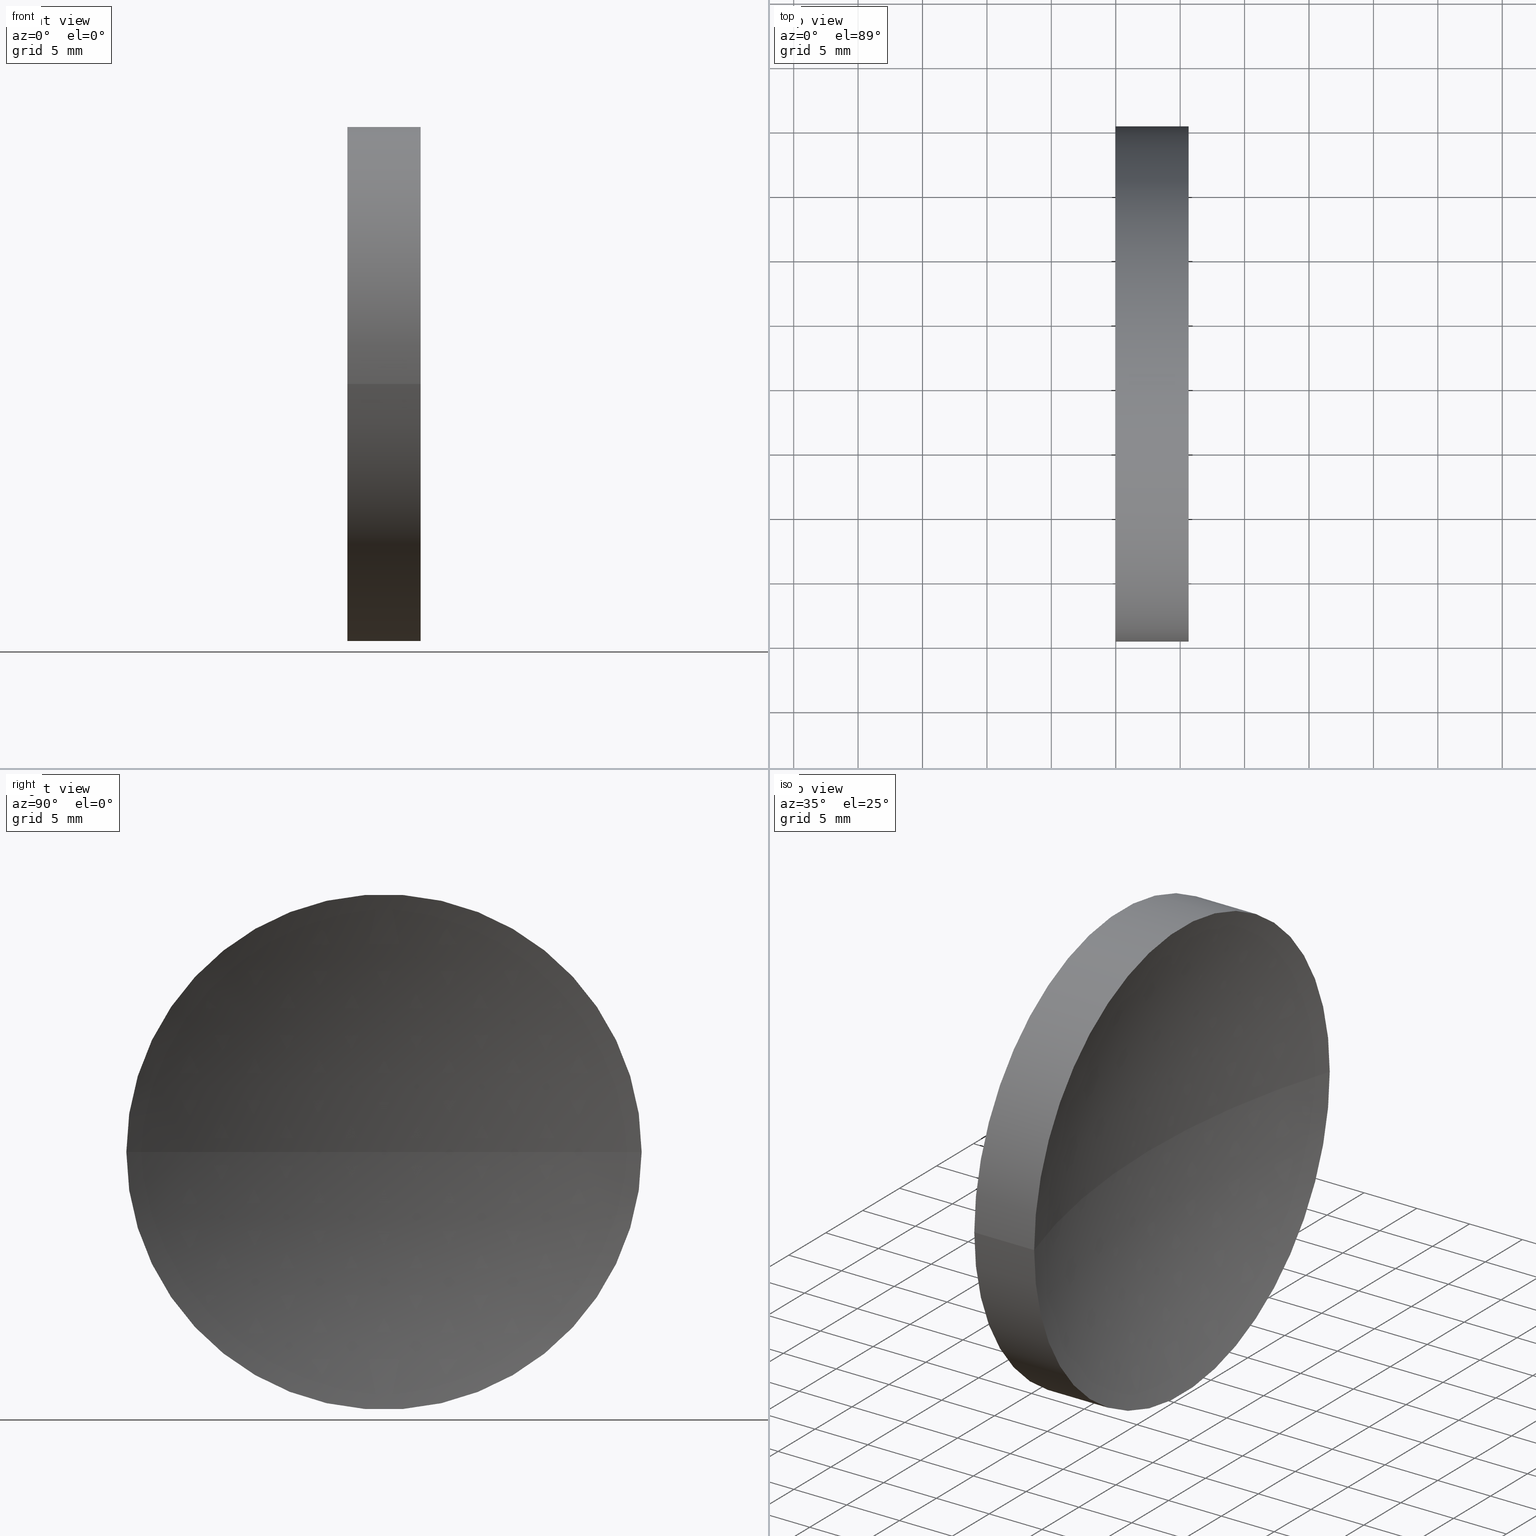
[diagram: canonical four-view strip — front | top / right | iso, engineering-drawing reading convention]
A machine part, canonical four-view strip (front | top / right | iso — engineering-drawing reading convention). The complete STEP part file that produces these views, byte-faithful:
ISO-10303-21;
HEADER;
FILE_DESCRIPTION (( 'STEP AP214' ),
    '1' );
FILE_NAME ('12016.STEP',
    '2019-06-21T02:53:35',
    ( '' ),
    ( '' ),
    'SwSTEP 2.0',
    'SolidWorks 2016',
    '' );
FILE_SCHEMA (( 'AUTOMOTIVE_DESIGN' ));
ENDSEC;

DATA;
#1 = ADVANCED_FACE ( 'NONE', ( #76 ), #99, .F. ) ;
#2 =( NAMED_UNIT ( * ) PLANE_ANGLE_UNIT ( ) SI_UNIT ( $, .RADIAN. ) );
#3 = CARTESIAN_POINT ( 'NONE',  ( 0.0000000000000000000, 0.0000000000000000000, 0.0000000000000000000 ) ) ;
#4 = ADVANCED_FACE ( 'NONE', ( #106 ), #24, .F. ) ;
#5 = ORIENTED_EDGE ( 'NONE', *, *, #23, .F. ) ;
#6 = CARTESIAN_POINT ( 'NONE',  ( 110.0147892488423600, 65.15745182658619700, 0.0000000000000000000 ) ) ;
#7 = SURFACE_STYLE_USAGE ( .BOTH. , #32 ) ;
#8 = CARTESIAN_POINT ( 'NONE',  ( 117.4754472601861900, 65.15745356914868600, 0.0000000000000000000 ) ) ;
#9 = STYLED_ITEM ( 'NONE', ( #15 ), #159 ) ;
#10 = EDGE_CURVE ( 'NONE', #27, #121, #66, .T. ) ;
#11 = UNCERTAINTY_MEASURE_WITH_UNIT (LENGTH_MEASURE( 1.000000000000000100E-005 ), #87, 'distance_accuracy_value', 'NONE');
#12 = EDGE_LOOP ( 'NONE', ( #131, #22, #50, #5 ) ) ;
#13 = ORIENTED_EDGE ( 'NONE', *, *, #95, .F. ) ;
#14 = EDGE_CURVE ( 'NONE', #27, #81, #148, .T. ) ;
#15 = PRESENTATION_STYLE_ASSIGNMENT (( #7 ) ) ;
#16 = CARTESIAN_POINT ( 'NONE',  ( 120.6519792980244600, 85.15745182658623900, 2.449293384892353000E-015 ) ) ;
#17 = DIRECTION ( 'NONE',  ( 6.488933942079480100E-016, 1.000000000000000000, 0.0000000000000000000 ) ) ;
#18 = EDGE_LOOP ( 'NONE', ( #109, #100, #155 ) ) ;
#19 = CARTESIAN_POINT ( 'NONE',  ( 120.6519792980244300, 45.15745356914864300, 0.0000000000000000000 ) ) ;
#20 = DIRECTION ( 'NONE',  ( -1.000000000000000000, 6.488933942079480100E-016, -0.0000000000000000000 ) ) ;
#21 =( LENGTH_UNIT ( ) NAMED_UNIT ( * ) SI_UNIT ( .MILLI., .METRE. ) );
#22 = ORIENTED_EDGE ( 'NONE', *, *, #14, .T. ) ;
#23 = EDGE_CURVE ( 'NONE', #94, #144, #39, .T. ) ;
#24 = SPHERICAL_SURFACE ( 'NONE', #31, 64.54999999999999700 ) ;
#25 = AXIS2_PLACEMENT_3D ( 'NONE', #112, #30, #125 ) ;
#26 = FACE_OUTER_BOUND ( 'NONE', #18, .T. ) ;
#27 = VERTEX_POINT ( 'NONE', #16 ) ;
#28 = SURFACE_STYLE_FILL_AREA ( #77 ) ;
#29 = CYLINDRICAL_SURFACE ( 'NONE', #117, 20.00000000000001100 ) ;
#30 = DIRECTION ( 'NONE',  ( -7.946652182046252500E-032, -1.224646799147353200E-016, 1.000000000000000000 ) ) ;
#31 = AXIS2_PLACEMENT_3D ( 'NONE', #141, #98, #73 ) ;
#32 = SURFACE_SIDE_STYLE ('',( #88 ) ) ;
#33 = DIRECTION ( 'NONE',  ( 1.000000000000000000, 0.0000000000000000000, 0.0000000000000000000 ) ) ;
#34 = AXIS2_PLACEMENT_3D ( 'NONE', #142, #161, #61 ) ;
#35 = DIRECTION ( 'NONE',  ( -6.938893903907219500E-016, -1.000000000000000000, 0.0000000000000000000 ) ) ;
#36 = FILL_AREA_STYLE_COLOUR ( '', #104 ) ;
#37 = DIRECTION ( 'NONE',  ( -1.000000000000000000, 6.488933942079480100E-016, -0.0000000000000000000 ) ) ;
#38 = PRODUCT_DEFINITION_SHAPE ( 'NONE', 'NONE',  #72 ) ;
#39 = LINE ( 'NONE', #86, #140 ) ;
#40 = PRESENTATION_STYLE_ASSIGNMENT (( #75 ) ) ;
#41 = EDGE_LOOP ( 'NONE', ( #57, #120, #96 ) ) ;
#42 = AXIS2_PLACEMENT_3D ( 'NONE', #79, #107, #130 ) ;
#43 = DIRECTION ( 'NONE',  ( -1.000000000000000000, 6.488933942079480100E-016, -0.0000000000000000000 ) ) ;
#44 = EDGE_CURVE ( 'NONE', #27, #94, #158, .T. ) ;
#45 = FACE_OUTER_BOUND ( 'NONE', #12, .T. ) ;
#46 =( LENGTH_UNIT ( ) NAMED_UNIT ( * ) SI_UNIT ( .MILLI., .METRE. ) );
#47 = CARTESIAN_POINT ( 'NONE',  ( 114.9754472601862300, 85.15745182658619700, 2.449293598294706500E-015 ) ) ;
#48 = PRODUCT_CONTEXT ( 'NONE', #74, 'mechanical' ) ;
#49 =( GEOMETRIC_REPRESENTATION_CONTEXT ( 3 ) GLOBAL_UNCERTAINTY_ASSIGNED_CONTEXT ( ( #70 ) ) GLOBAL_UNIT_ASSIGNED_CONTEXT ( ( #21, #118, #147 ) ) REPRESENTATION_CONTEXT ( 'NONE', 'WORKASPACE' ) );
#50 = ORIENTED_EDGE ( 'NONE', *, *, #68, .F. ) ;
#51 = CARTESIAN_POINT ( 'NONE',  ( 114.9754472601862000, 45.15745182658619000, 0.0000000000000000000 ) ) ;
#52 = APPLICATION_PROTOCOL_DEFINITION ( 'draft international standard', 'automotive_design', 1998, #53 ) ;
#53 = APPLICATION_CONTEXT ( 'automotive_design' ) ;
#54 = AXIS2_PLACEMENT_3D ( 'NONE', #6, #116, #103 ) ;
#55 = ORIENTED_EDGE ( 'NONE', *, *, #23, .T. ) ;
#56 = CIRCLE ( 'NONE', #166, 20.00000000000002500 ) ;
#57 = ORIENTED_EDGE ( 'NONE', *, *, #44, .F. ) ;
#58 = CARTESIAN_POINT ( 'NONE',  ( 114.9754472601862300, 65.15745182658619700, 0.0000000000000000000 ) ) ;
#59 = EDGE_LOOP ( 'NONE', ( #84, #111, #55, #13 ) ) ;
#60 = DIRECTION ( 'NONE',  ( -6.938893903907224400E-016, -1.000000000000000000, 0.0000000000000000000 ) ) ;
#61 = DIRECTION ( 'NONE',  ( -6.938893903907219500E-016, -1.000000000000000000, 0.0000000000000000000 ) ) ;
#62 = PRESENTATION_LAYER_ASSIGNMENT (  '', '', ( #9 ) ) ;
#63 = CARTESIAN_POINT ( 'NONE',  ( 110.0147892488423600, 65.15745182658619700, 0.0000000000000000000 ) ) ;
#64 = PRODUCT ( '12016', '12016', '', ( #48 ) ) ;
#65 = AXIS2_PLACEMENT_3D ( 'NONE', #134, #105, #143 ) ;
#66 = CIRCLE ( 'NONE', #25, 64.54999999999999700 ) ;
#67 = CIRCLE ( 'NONE', #65, 64.54999999999999700 ) ;
#68 = EDGE_CURVE ( 'NONE', #144, #81, #92, .T. ) ;
#69 = VECTOR ( 'NONE', #97, 1000.000000000000000 ) ;
#70 = UNCERTAINTY_MEASURE_WITH_UNIT (LENGTH_MEASURE( 1.000000000000000100E-005 ), #21, 'distance_accuracy_value', 'NONE');
#71 = MECHANICAL_DESIGN_GEOMETRIC_PRESENTATION_REPRESENTATION (  '', ( #101 ), #102 ) ;
#72 = PRODUCT_DEFINITION ( 'δ֪', '', #137, #136 ) ;
#73 = DIRECTION ( 'NONE',  ( -8.599713591209579000E-016, -1.000000000000000000, 0.0000000000000000000 ) ) ;
#74 = APPLICATION_CONTEXT ( 'automotive_design' ) ;
#75 = SURFACE_STYLE_USAGE ( .BOTH. , #163 ) ;
#76 = FACE_OUTER_BOUND ( 'NONE', #157, .T. ) ;
#77 = FILL_AREA_STYLE ('',( #36 ) ) ;
#78 = ADVANCED_FACE ( 'NONE', ( #45 ), #162, .T. ) ;
#79 = CARTESIAN_POINT ( 'NONE',  ( 182.0254472601861800, 65.15745356914864300, 0.0000000000000000000 ) ) ;
#80 = DIRECTION ( 'NONE',  ( -6.938893903907227400E-016, -1.000000000000000000, 0.0000000000000000000 ) ) ;
#81 = VERTEX_POINT ( 'NONE', #47 ) ;
#82 = PRODUCT_RELATED_PRODUCT_CATEGORY ( 'part', '', ( #64 ) ) ;
#83 = PRESENTATION_LAYER_ASSIGNMENT (  '', '', ( #101 ) ) ;
#84 = ORIENTED_EDGE ( 'NONE', *, *, #14, .F. ) ;
#85 = ORIENTED_EDGE ( 'NONE', *, *, #68, .T. ) ;
#86 = CARTESIAN_POINT ( 'NONE',  ( 110.0147892488423500, 45.15745182658618300, 0.0000000000000000000 ) ) ;
#87 =( LENGTH_UNIT ( ) NAMED_UNIT ( * ) SI_UNIT ( .MILLI., .METRE. ) );
#88 = SURFACE_STYLE_FILL_AREA ( #91 ) ;
#89 =( NAMED_UNIT ( * ) SI_UNIT ( $, .STERADIAN. ) SOLID_ANGLE_UNIT ( ) );
#90 = ADVANCED_FACE ( 'NONE', ( #93 ), #29, .T. ) ;
#91 = FILL_AREA_STYLE ('',( #165 ) ) ;
#92 = CIRCLE ( 'NONE', #113, 20.00000000000000400 ) ;
#93 = FACE_OUTER_BOUND ( 'NONE', #59, .T. ) ;
#94 = VERTEX_POINT ( 'NONE', #19 ) ;
#95 = EDGE_CURVE ( 'NONE', #81, #144, #156, .T. ) ;
#96 = ORIENTED_EDGE ( 'NONE', *, *, #122, .F. ) ;
#97 = DIRECTION ( 'NONE',  ( -1.000000000000000000, 6.488933942079480100E-016, -0.0000000000000000000 ) ) ;
#98 = DIRECTION ( 'NONE',  ( 0.0000000000000000000, 0.0000000000000000000, 1.000000000000000000 ) ) ;
#99 = PLANE ( 'NONE',  #108 ) ;
#100 = ORIENTED_EDGE ( 'NONE', *, *, #128, .F. ) ;
#101 = STYLED_ITEM ( 'NONE', ( #40 ), #151 ) ;
#102 =( GEOMETRIC_REPRESENTATION_CONTEXT ( 3 ) GLOBAL_UNCERTAINTY_ASSIGNED_CONTEXT ( ( #11 ) ) GLOBAL_UNIT_ASSIGNED_CONTEXT ( ( #87, #2, #89 ) ) REPRESENTATION_CONTEXT ( 'NONE', 'WORKASPACE' ) );
#103 = DIRECTION ( 'NONE',  ( -6.938893903907224400E-016, -1.000000000000000000, 0.0000000000000000000 ) ) ;
#104 = COLOUR_RGB ( '',1.000000000000000000, 1.000000000000000000, 1.000000000000000000 ) ;
#105 = DIRECTION ( 'NONE',  ( 0.0000000000000000000, -0.0000000000000000000, -1.000000000000000000 ) ) ;
#106 = FACE_OUTER_BOUND ( 'NONE', #41, .T. ) ;
#107 = DIRECTION ( 'NONE',  ( 0.0000000000000000000, 0.0000000000000000000, 1.000000000000000000 ) ) ;
#108 = AXIS2_PLACEMENT_3D ( 'NONE', #58, #152, #17 ) ;
#109 = ORIENTED_EDGE ( 'NONE', *, *, #10, .F. ) ;
#110 =( GEOMETRIC_REPRESENTATION_CONTEXT ( 3 ) GLOBAL_UNCERTAINTY_ASSIGNED_CONTEXT ( ( #138 ) ) GLOBAL_UNIT_ASSIGNED_CONTEXT ( ( #46, #132, #127 ) ) REPRESENTATION_CONTEXT ( 'NONE', 'WORKASPACE' ) );
#111 = ORIENTED_EDGE ( 'NONE', *, *, #44, .T. ) ;
#112 = CARTESIAN_POINT ( 'NONE',  ( 182.0254472601861800, 65.15745356914864300, 0.0000000000000000000 ) ) ;
#113 = AXIS2_PLACEMENT_3D ( 'NONE', #146, #20, #153 ) ;
#114 = DIRECTION ( 'NONE',  ( -1.000000000000000000, 6.488933942079480100E-016, -0.0000000000000000000 ) ) ;
#115 = DIRECTION ( 'NONE',  ( 0.0000000000000000000, 0.0000000000000000000, 1.000000000000000000 ) ) ;
#116 = DIRECTION ( 'NONE',  ( -1.000000000000000000, 6.488933942079480100E-016, -0.0000000000000000000 ) ) ;
#117 = AXIS2_PLACEMENT_3D ( 'NONE', #63, #154, #60 ) ;
#118 =( NAMED_UNIT ( * ) PLANE_ANGLE_UNIT ( ) SI_UNIT ( $, .RADIAN. ) );
#119 = CARTESIAN_POINT ( 'NONE',  ( 120.6519792980244300, 65.15745182658619700, 0.0000000000000000000 ) ) ;
#120 = ORIENTED_EDGE ( 'NONE', *, *, #10, .T. ) ;
#121 = VERTEX_POINT ( 'NONE', #8 ) ;
#122 = EDGE_CURVE ( 'NONE', #94, #121, #67, .T. ) ;
#123 = SPHERICAL_SURFACE ( 'NONE', #42, 64.54999999999999700 ) ;
#124 = MECHANICAL_DESIGN_GEOMETRIC_PRESENTATION_REPRESENTATION (  '', ( #9 ), #110 ) ;
#125 = DIRECTION ( 'NONE',  ( 0.0000000000000000000, -1.000000000000000000, -1.224646799147353000E-016 ) ) ;
#126 = CARTESIAN_POINT ( 'NONE',  ( 110.0147892488423800, 85.15745182658621100, 2.449293598294708100E-015 ) ) ;
#127 =( NAMED_UNIT ( * ) SI_UNIT ( $, .STERADIAN. ) SOLID_ANGLE_UNIT ( ) );
#128 = EDGE_CURVE ( 'NONE', #94, #27, #56, .T. ) ;
#129 = APPLICATION_PROTOCOL_DEFINITION ( 'draft international standard', 'automotive_design', 1998, #74 ) ;
#130 = DIRECTION ( 'NONE',  ( -8.599713591209579000E-016, -1.000000000000000000, 0.0000000000000000000 ) ) ;
#131 = ORIENTED_EDGE ( 'NONE', *, *, #128, .T. ) ;
#132 =( NAMED_UNIT ( * ) PLANE_ANGLE_UNIT ( ) SI_UNIT ( $, .RADIAN. ) );
#133 = ADVANCED_FACE ( 'NONE', ( #26 ), #123, .F. ) ;
#134 = CARTESIAN_POINT ( 'NONE',  ( 182.0254472601861800, 65.15745356914864300, 0.0000000000000000000 ) ) ;
#135 = CLOSED_SHELL ( 'NONE', ( #78, #4, #133, #90, #1 ) ) ;
#136 = PRODUCT_DEFINITION_CONTEXT ( 'detailed design', #53, 'design' ) ;
#137 = PRODUCT_DEFINITION_FORMATION_WITH_SPECIFIED_SOURCE ( '�κ�', '', #64, .NOT_KNOWN. ) ;
#138 = UNCERTAINTY_MEASURE_WITH_UNIT (LENGTH_MEASURE( 1.000000000000000100E-005 ), #46, 'distance_accuracy_value', 'NONE');
#139 = AXIS2_PLACEMENT_3D ( 'NONE', #3, #115, #33 ) ;
#140 = VECTOR ( 'NONE', #43, 1000.000000000000000 ) ;
#141 = CARTESIAN_POINT ( 'NONE',  ( 182.0254472601861800, 65.15745356914864300, 0.0000000000000000000 ) ) ;
#142 = CARTESIAN_POINT ( 'NONE',  ( 120.6519792980244300, 65.15745182658619700, 0.0000000000000000000 ) ) ;
#143 = DIRECTION ( 'NONE',  ( -1.000000000000000000, 0.0000000000000000000, 0.0000000000000000000 ) ) ;
#144 = VERTEX_POINT ( 'NONE', #51 ) ;
#145 = CARTESIAN_POINT ( 'NONE',  ( 114.9754472601862100, 65.15745182658619700, 0.0000000000000000000 ) ) ;
#146 = CARTESIAN_POINT ( 'NONE',  ( 114.9754472601862100, 65.15745182658619700, 0.0000000000000000000 ) ) ;
#147 =( NAMED_UNIT ( * ) SI_UNIT ( $, .STERADIAN. ) SOLID_ANGLE_UNIT ( ) );
#148 = LINE ( 'NONE', #126, #69 ) ;
#149 = SHAPE_DEFINITION_REPRESENTATION ( #38, #151 ) ;
#150 = ORIENTED_EDGE ( 'NONE', *, *, #95, .T. ) ;
#151 = ADVANCED_BREP_SHAPE_REPRESENTATION ( '12016', ( #159, #139 ), #49 ) ;
#152 = DIRECTION ( 'NONE',  ( 1.000000000000000000, -6.488933942079480100E-016, 0.0000000000000000000 ) ) ;
#153 = DIRECTION ( 'NONE',  ( -6.938893903907227400E-016, -1.000000000000000000, 0.0000000000000000000 ) ) ;
#154 = DIRECTION ( 'NONE',  ( -1.000000000000000000, 6.488933942079480100E-016, -0.0000000000000000000 ) ) ;
#155 = ORIENTED_EDGE ( 'NONE', *, *, #122, .T. ) ;
#156 = CIRCLE ( 'NONE', #160, 20.00000000000000400 ) ;
#157 = EDGE_LOOP ( 'NONE', ( #85, #150 ) ) ;
#158 = CIRCLE ( 'NONE', #34, 20.00000000000002500 ) ;
#159 = MANIFOLD_SOLID_BREP ( '��ת1', #135 ) ;
#160 = AXIS2_PLACEMENT_3D ( 'NONE', #145, #37, #80 ) ;
#161 = DIRECTION ( 'NONE',  ( -1.000000000000000000, 6.488933942079480100E-016, -0.0000000000000000000 ) ) ;
#162 = CYLINDRICAL_SURFACE ( 'NONE', #54, 20.00000000000001100 ) ;
#163 = SURFACE_SIDE_STYLE ('',( #28 ) ) ;
#164 = COLOUR_RGB ( '',1.000000000000000000, 1.000000000000000000, 1.000000000000000000 ) ;
#165 = FILL_AREA_STYLE_COLOUR ( '', #164 ) ;
#166 = AXIS2_PLACEMENT_3D ( 'NONE', #119, #114, #35 ) ;
ENDSEC;
END-ISO-10303-21;
